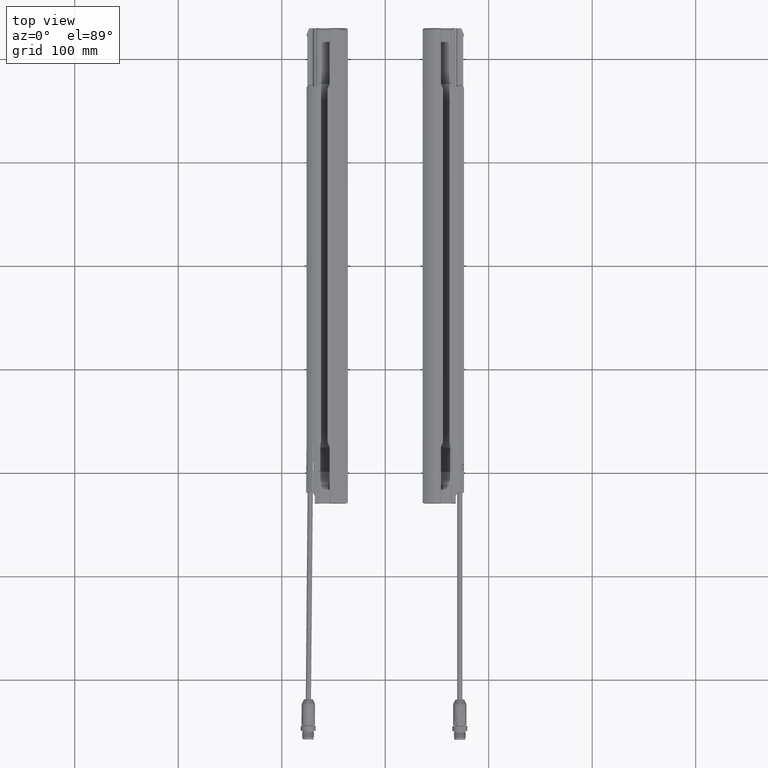
[diagram: clean part render]
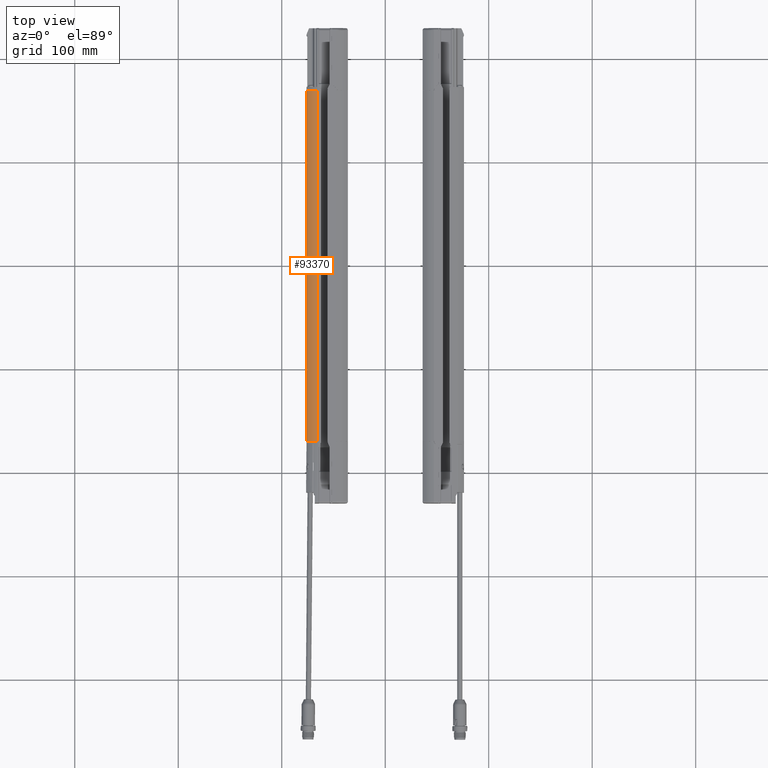
[diagram: same view with one face highlighted and labeled with its STEP entity id]
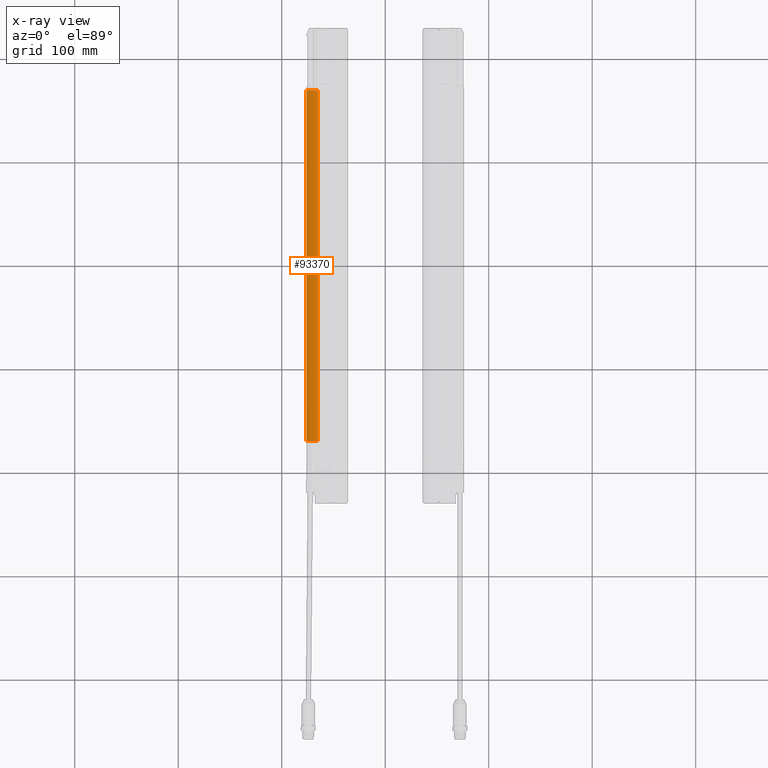
[diagram: x-ray of the same camera — body ghosted, the highlighted face saturated]
A machine part, top view. The second image highlights one B-rep face of the part: STEP entity #93370.
The next image is the same camera in x-ray: the body ghosted, the highlighted face saturated — about 0% of this face is hidden behind the body in this view.
In plain terms, the highlighted cylindrical surface (edge-blend (fillet) strip) has radius 20 mm, axis along (0, -1, 0.0003).
Its self-contained STEP definition (entity closure, byte-faithful):
#3628 = CIRCLE ( 'NONE', #36481, 0.7874015748031498729 ) ;
#4231 = ORIENTED_EDGE ( 'NONE', *, *, #24293, .F. ) ;
#7327 = EDGE_CURVE ( 'NONE', #35385, #26561, #90102, .T. ) ;
#8762 = CARTESIAN_POINT ( 'NONE',  ( -2.442082008855712694, 123.2479971158431198, -0.1276101465355783671 ) ) ;
#24293 = EDGE_CURVE ( 'NONE', #90946, #94033, #73205, .T. ) ;
#24862 = DIRECTION ( 'NONE',  ( -1.526111261793904519E-14, 0.9999999431153856477, -0.0003372969396878318913 ) ) ;
#24911 = AXIS2_PLACEMENT_3D ( 'NONE', #43624, #43131, #99723 ) ;
#26561 = VERTEX_POINT ( 'NONE', #87247 ) ;
#33143 = ORIENTED_EDGE ( 'NONE', *, *, #60287, .F. ) ;
#35385 = VERTEX_POINT ( 'NONE', #90547 ) ;
#36481 = AXIS2_PLACEMENT_3D ( 'NONE', #44015, #77331, #38229 ) ;
#38229 = DIRECTION ( 'NONE',  ( -1.734723475976806503E-15, -0.0003372969396883695472, -0.9999999431153856477 ) ) ;
#38603 = CARTESIAN_POINT ( 'NONE',  ( -2.993108301093846624, -6.673067782470964104, 0.4786807671402047437 ) ) ;
#38634 = FACE_OUTER_BOUND ( 'NONE', #47682, .T. ) ;
#40146 = CYLINDRICAL_SURFACE ( 'NONE', #99081, 0.7874015748031498729 ) ;
#43131 = DIRECTION ( 'NONE',  ( 1.526111261793904835E-14, -0.9999999431153857588, 0.0003372969396883694388 ) ) ;
#43612 = CARTESIAN_POINT ( 'NONE',  ( -2.993108301094051349, 6.673388151234390442, 0.4741790481420094516 ) ) ;
#43624 = CARTESIAN_POINT ( 'NONE',  ( -2.442082008853732500, -6.673257501510118317, -0.08378810245994153250 ) ) ;
#44015 = CARTESIAN_POINT ( 'NONE',  ( -2.442082008853933228, 6.673198432195236229, -0.08828982145813739357 ) ) ;
#46341 = DIRECTION ( 'NONE',  ( 0.000000000000000000, -0.0003372969396897572717, -0.9999999431153856477 ) ) ;
#47682 = EDGE_LOOP ( 'NONE', ( #48822, #92999, #33143, #4231 ) ) ;
#48822 = ORIENTED_EDGE ( 'NONE', *, *, #89729, .F. ) ;
#60287 = EDGE_CURVE ( 'NONE', #94033, #26561, #3628, .T. ) ;
#66897 = CARTESIAN_POINT ( 'NONE',  ( -2.563750379483213049, 123.2482595142293462, 0.6503345679129587387 ) ) ;
#71103 = CIRCLE ( 'NONE', #24911, 0.7874015748031498729 ) ;
#73205 = LINE ( 'NONE', #87154, #94531 ) ;
#77331 = DIRECTION ( 'NONE',  ( -1.526111261793904835E-14, 0.9999999431153857588, -0.0003372969396883694388 ) ) ;
#84764 = VECTOR ( 'NONE', #98291, 39.37007874015748854 ) ;
#87154 = CARTESIAN_POINT ( 'NONE',  ( -2.993108301095830814, 123.2481868348820910, 0.4348587230645685198 ) ) ;
#87247 = CARTESIAN_POINT ( 'NONE',  ( -2.563741724157071022, 6.673460795532520251, 0.6896575952390591180 ) ) ;
#89729 = EDGE_CURVE ( 'NONE', #35385, #90946, #71103, .T. ) ;
#90102 = LINE ( 'NONE', #66897, #84764 ) ;
#90547 = CARTESIAN_POINT ( 'NONE',  ( -2.563741175253365867, -6.672995102635314701, 0.6941580848069173193 ) ) ;
#90946 = VERTEX_POINT ( 'NONE', #38603 ) ;
#92999 = ORIENTED_EDGE ( 'NONE', *, *, #7327, .T. ) ;
#93203 = DIRECTION ( 'NONE',  ( 1.526111261793904835E-14, -0.9999999431153857588, 0.0003372969396897574344 ) ) ;
#93370 = ADVANCED_FACE ( 'NONE', ( #38634 ), #40146, .T. ) ;
#94033 = VERTEX_POINT ( 'NONE', #43612 ) ;
#94531 = VECTOR ( 'NONE', #24862, 39.37007874015748854 ) ;
#98291 = DIRECTION ( 'NONE',  ( -1.526111261793904519E-14, 0.9999999431153856477, -0.0003372969396878318913 ) ) ;
#99081 = AXIS2_PLACEMENT_3D ( 'NONE', #8762, #93203, #46341 ) ;
#99723 = DIRECTION ( 'NONE',  ( 0.000000000000000000, -0.0003372969396883695472, -0.9999999431153856477 ) ) ;